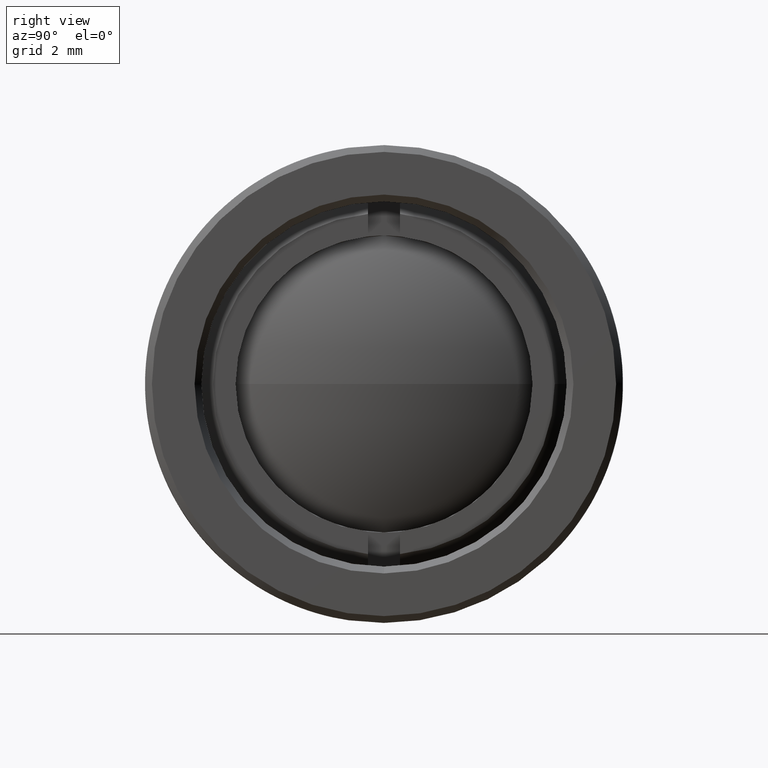
[diagram: clean part render]
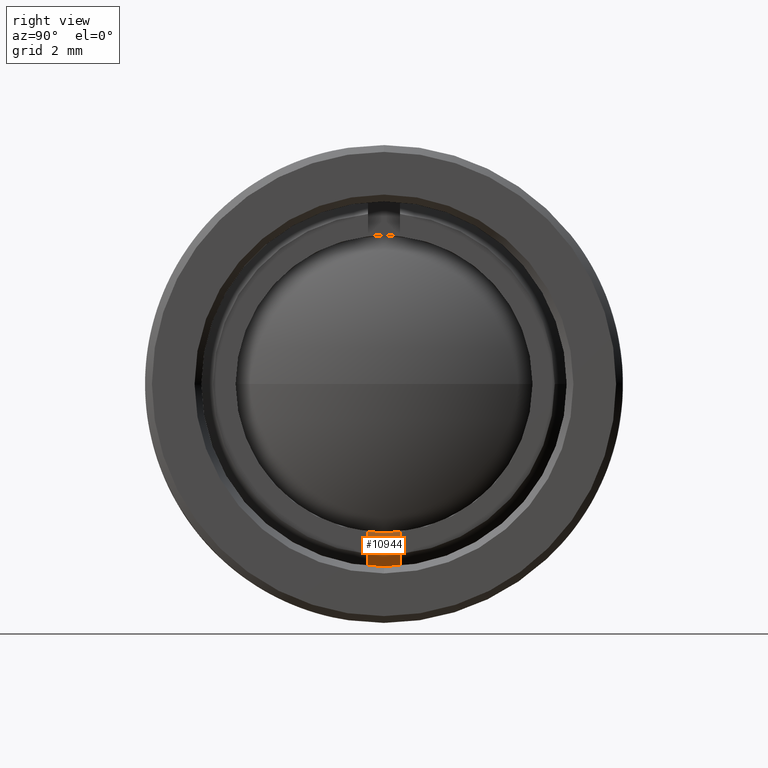
[diagram: same view with one face highlighted and labeled with its STEP entity id]
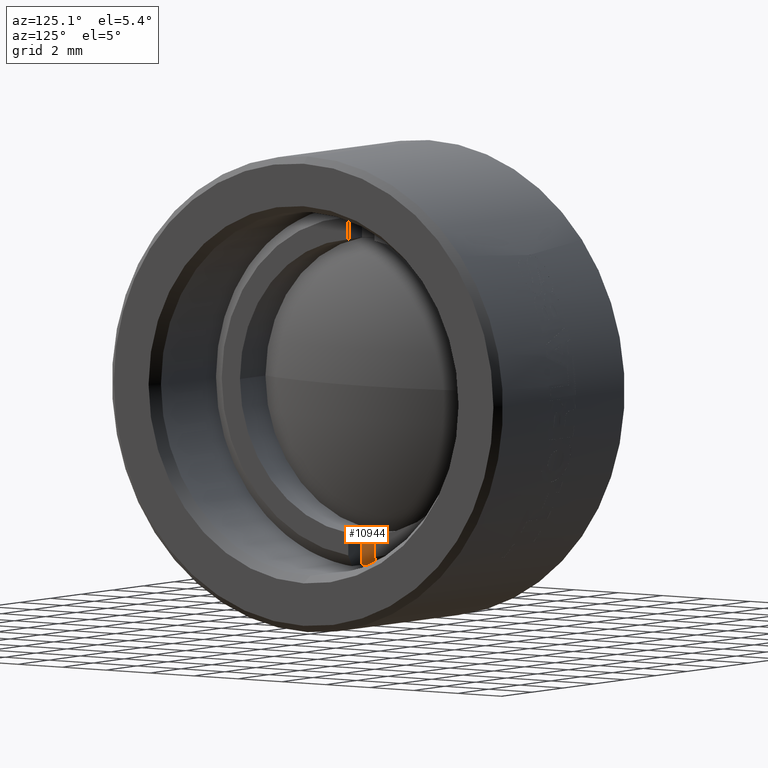
[diagram: same view with one face highlighted and labeled with its STEP entity id]
A machine part, right view. The second image highlights one B-rep face of the part: STEP entity #10944.
A second angle (auxiliary view) of the same face is appended — the face is thin or edge-on in the first view.
In plain terms, the highlighted planar face has unit normal (1, 0, 0).
Its self-contained STEP definition (entity closure, byte-faithful):
#918 = CARTESIAN_POINT ( 'NONE',  ( 0.02255807924783912900, 0.02349999999999997200, -0.2664657576500216200 ) ) ;
#1393 = CARTESIAN_POINT ( 'NONE',  ( 0.02255807924783912900, -0.02350000000000001700, -0.2162267328523464800 ) ) ;
#1925 = VERTEX_POINT ( 'NONE', #1393 ) ;
#3173 = CARTESIAN_POINT ( 'NONE',  ( 0.02255807924783912900, -2.480033383351934400E-017, -7.950724084117284600E-027 ) ) ;
#3221 = EDGE_CURVE ( 'NONE', #7002, #1925, #16112, .T. ) ;
#3505 = ORIENTED_EDGE ( 'NONE', *, *, #3221, .T. ) ;
#3709 = EDGE_CURVE ( 'NONE', #13842, #7152, #12614, .T. ) ;
#4442 = CARTESIAN_POINT ( 'NONE',  ( 0.02255807924783912900, -2.480033383351934400E-017, -7.950724084117284600E-027 ) ) ;
#4525 = CARTESIAN_POINT ( 'NONE',  ( 0.02255807924783912900, -0.02350000000000002400, -0.2664657576500216200 ) ) ;
#5865 = DIRECTION ( 'NONE',  ( 0.0000000000000000000, -1.000000000000000000, 0.0000000000000000000 ) ) ;
#6764 = CARTESIAN_POINT ( 'NONE',  ( 0.02255807924783912900, -2.480033383351934400E-017, -7.950724084117284600E-027 ) ) ;
#6797 = EDGE_CURVE ( 'NONE', #7152, #7002, #15823, .T. ) ;
#7002 = VERTEX_POINT ( 'NONE', #15563 ) ;
#7152 = VERTEX_POINT ( 'NONE', #15987 ) ;
#7340 = DIRECTION ( 'NONE',  ( 0.0000000000000000000, 1.699281587288270400E-016, -1.000000000000000000 ) ) ;
#7403 = PLANE ( 'NONE',  #15580 ) ;
#7896 = DIRECTION ( 'NONE',  ( 0.0000000000000000000, 1.699281587288270400E-016, 1.000000000000000000 ) ) ;
#8170 = DIRECTION ( 'NONE',  ( 0.0000000000000000000, -1.000000000000000000, 0.0000000000000000000 ) ) ;
#8796 = DIRECTION ( 'NONE',  ( 0.0000000000000000000, -1.000000000000000000, 0.0000000000000000000 ) ) ;
#9753 = ORIENTED_EDGE ( 'NONE', *, *, #6797, .T. ) ;
#10326 = FACE_OUTER_BOUND ( 'NONE', #13378, .T. ) ;
#10944 = ADVANCED_FACE ( 'NONE', ( #10326 ), #7403, .T. ) ;
#11296 = ORIENTED_EDGE ( 'NONE', *, *, #12629, .T. ) ;
#12614 = CIRCLE ( 'NONE', #17408, 0.2675000000000000700 ) ;
#12629 = EDGE_CURVE ( 'NONE', #1925, #13842, #12746, .T. ) ;
#12746 = LINE ( 'NONE', #4525, #15566 ) ;
#13378 = EDGE_LOOP ( 'NONE', ( #16164, #9753, #3505, #11296 ) ) ;
#13842 = VERTEX_POINT ( 'NONE', #14292 ) ;
#14215 = DIRECTION ( 'NONE',  ( 1.000000000000000000, 0.0000000000000000000, 0.0000000000000000000 ) ) ;
#14292 = CARTESIAN_POINT ( 'NONE',  ( 0.02255807924783912900, -0.02350000000000002400, -0.2664657576500216200 ) ) ;
#14700 = AXIS2_PLACEMENT_3D ( 'NONE', #6764, #16522, #8170 ) ;
#15380 = VECTOR ( 'NONE', #7896, 39.37007874015748100 ) ;
#15563 = CARTESIAN_POINT ( 'NONE',  ( 0.02255807924783912900, 0.02349999999999997900, -0.2162267328523464500 ) ) ;
#15566 = VECTOR ( 'NONE', #7340, 39.37007874015748100 ) ;
#15580 = AXIS2_PLACEMENT_3D ( 'NONE', #3173, #17163, #8796 ) ;
#15823 = LINE ( 'NONE', #918, #15380 ) ;
#15987 = CARTESIAN_POINT ( 'NONE',  ( 0.02255807924783912900, 0.02349999999999997200, -0.2664657576500216200 ) ) ;
#16112 = CIRCLE ( 'NONE', #14700, 0.2175000000000000000 ) ;
#16164 = ORIENTED_EDGE ( 'NONE', *, *, #3709, .T. ) ;
#16522 = DIRECTION ( 'NONE',  ( -1.000000000000000000, 0.0000000000000000000, 0.0000000000000000000 ) ) ;
#17163 = DIRECTION ( 'NONE',  ( 1.000000000000000000, 0.0000000000000000000, 0.0000000000000000000 ) ) ;
#17408 = AXIS2_PLACEMENT_3D ( 'NONE', #4442, #14215, #5865 ) ;